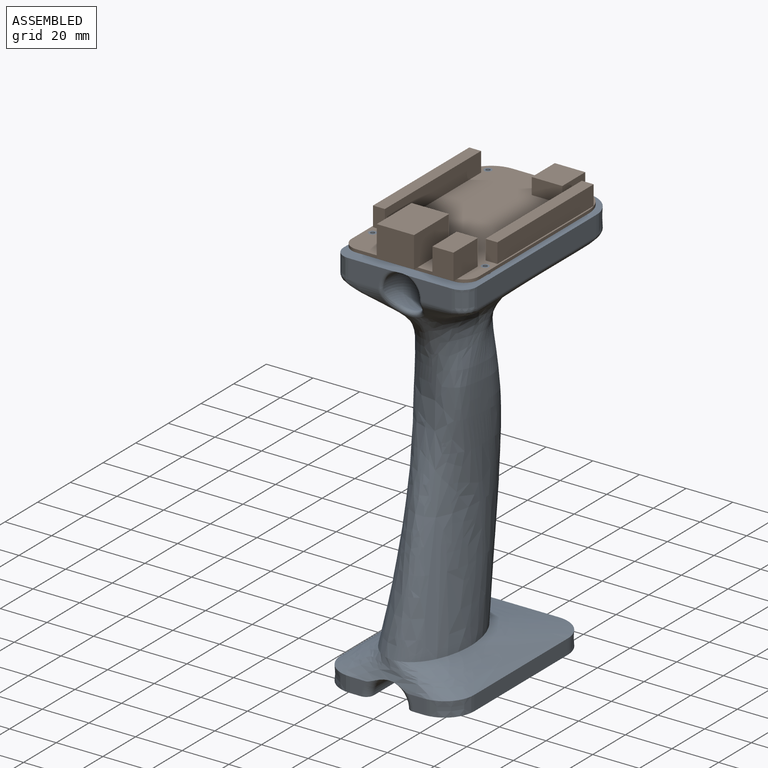
[diagram: assembled view]
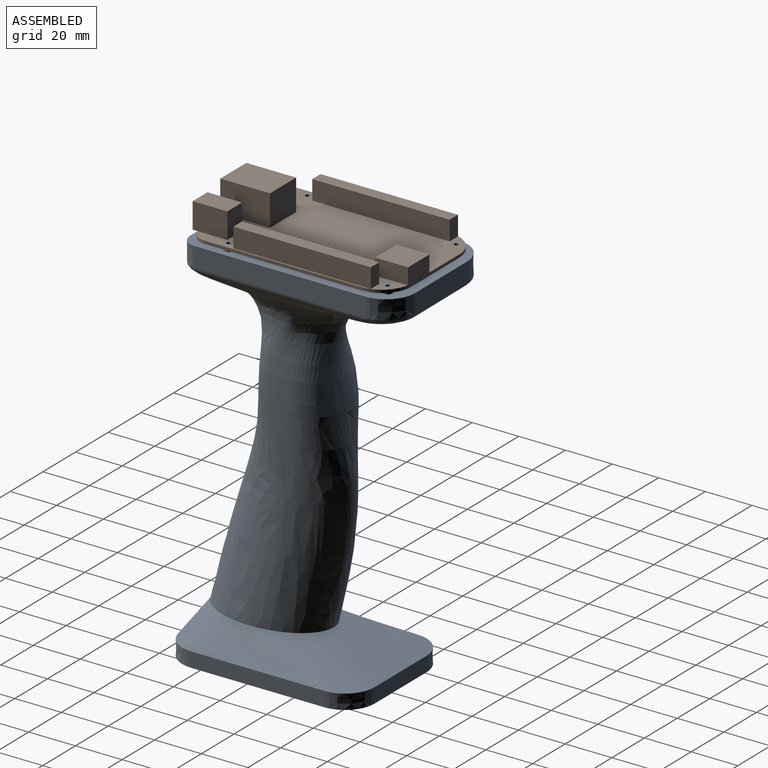
[diagram: assembled view, second angle]
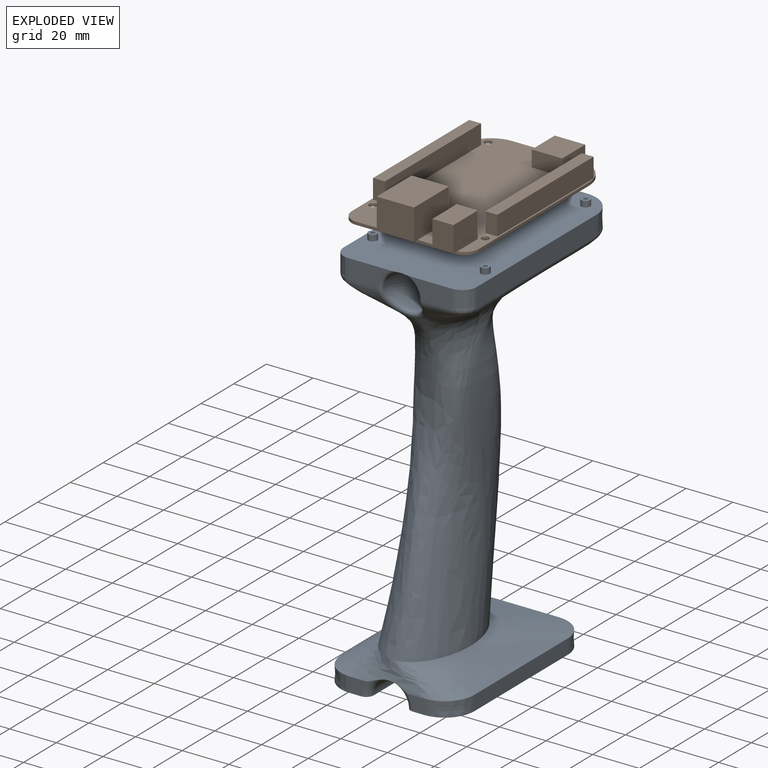
[diagram: exploded view]
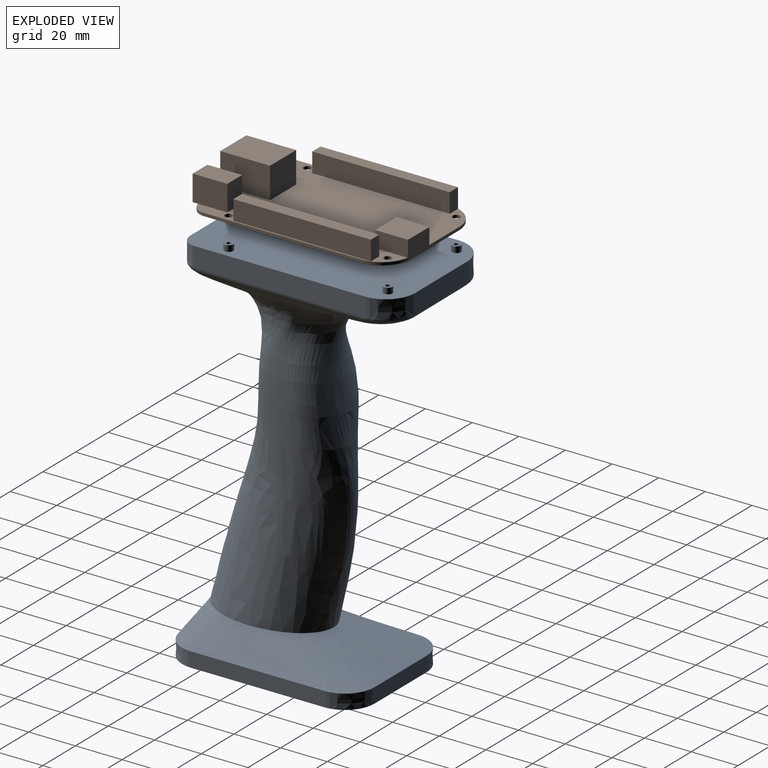
[diagram: exploded view, second angle]
ASSEMBLY  parts=2 mates=2
PART A: 56 faces, bbox 60.8x103.6x171 mm
  f0: plane 21.6x11.67mm, normal (0,-1,0), area 119.6mm2, adj f1,f9,f26,f55
  f1: extruded ~8.26x6.35mm, area 82.3mm2, adj f0,f2,f9,f55
  f2: plane 73.03x8.26mm, normal (-1,0,0), area 602.8mm2, adj f1,f3,f9,f55
  f3: extruded ~12.7x12.7mm, area 164.7mm2, adj f2,f4,f9,f55
  f4: plane 33.94x10.45mm, normal (0,1,0), area 262.1mm2, adj f3,f5,f9,f55
  f5: extruded ~12.7x12.7mm, area 164.7mm2, adj f4,f6,f9,f55
  f6: plane 73.03x8.26mm, normal (1,0,0), area 602.8mm2, adj f5,f7,f9,f55
  f7: extruded ~8.26x6.35mm, area 82.3mm2, adj f6,f8,f9,f55
  f8: plane 21.82x11.9mm, normal (0,-1,0), area 119.6mm2, adj f7,f9,f26,f55
  f9: plane 92.08x57.15mm, normal (0,0,1), area 5128.2mm2, adj f0,f1,f2,f3,f4,f5,f6,f7
  f10: cylinder r=1.91mm len=3.81mm, axis (0,0,-1), area 30.4mm2, adj f9,f11
  f11: plane 3.81x3.81mm, normal (0,0,1), area 8.9mm2, adj f10,f12
  f12: cylinder r=0.89mm len=7.62mm, axis (0,0,1), area 42.6mm2, adj f11,f13
  f13: plane 1.78x1.78mm, normal (0,0,1), area 2.5mm2, adj f12
  f14: cylinder r=1.91mm len=3.81mm, axis (0,0,-1), area 30.4mm2, adj f9,f15
  f15: plane 3.81x3.81mm, normal (0,0,1), area 8.9mm2, adj f14,f16
  f16: cylinder r=0.89mm len=7.62mm, axis (0,0,1), area 42.6mm2, adj f15,f17
  f17: plane 1.78x1.78mm, normal (0,0,1), area 2.5mm2, adj f16
  f18: cylinder r=1.91mm len=3.81mm, axis (0,0,-1), area 30.4mm2, adj f9,f19
  f19: plane 3.81x3.81mm, normal (0,0,1), area 8.9mm2, adj f18,f20
  f20: cylinder r=0.89mm len=7.62mm, axis (0,0,1), area 42.6mm2, adj f19,f21
  f21: plane 1.78x1.78mm, normal (0,0,1), area 2.5mm2, adj f20
  f22: cylinder r=1.91mm len=3.81mm, axis (0,0,-1), area 30.4mm2, adj f9,f23
  f23: plane 3.81x3.81mm, normal (0,0,1), area 8.9mm2, adj f22,f24
  f24: cylinder r=0.89mm len=7.62mm, axis (0,0,1), area 42.6mm2, adj f23,f25
  f25: plane 1.78x1.78mm, normal (0,0,1), area 2.5mm2, adj f24
  f26: bspline ~18.42x11.26mm, area 46.5mm2, adj f0,f8,f9,f27,f54
  f27: torus R=38.7mm, axis (1,0,0), area 1756.2mm2, adj f26,f28,f29,f30,f31,f32,f50,f51
  f28: plane 15.88x7.93mm, normal (0,0.04,-1), area 45.6mm2, adj f27,f29,f50,f53
  f29: plane 2.01x0.85mm, normal (0,0,-1), area 0.9mm2, adj f27,f28,f30
  f30: bspline ~39.38x18.49mm, area 0.1mm2, adj f27,f29,f31
  f31: plane 2.1x0.37mm, normal (0,0.04,-1), area 0mm2, adj f27,f30,f50
  f32: bspline ~135.2x31.2mm, area 6033.2mm2, adj f27,f33,f34,f35,f36,f49
  f33: plane 17.32x11.05mm, normal (0,0,1), area 52.6mm2, adj f32,f35
  f34: torus R=38.7mm, axis (1,0,0), area 523.4mm2, adj f32,f50
  f35: torus R=38.7mm, axis (1,0,0), area 85mm2, adj f32,f33
  f36: plane 84.8x59.4mm, normal (0,0,-1), area 4022.3mm2, adj f32,f37,f39,f40,f41,f42,f43,f44
  f37: plane 7.03x6.63mm, normal (0,-1,0), area 34.3mm2, adj f36,f38,f39,f47
  f38: bspline ~82.55x57.15mm, area 3880mm2, adj f37,f39,f40,f41,f42,f43,f44,f45
  f39: extruded ~12.7x12.7mm, area 126.7mm2, adj f36,f37,f38,f40
  f40: plane 59.9x9.1mm, normal (1,0,0), area 362.9mm2, adj f36,f38,f39,f41
  f41: extruded ~12.7x12.7mm, area 126.7mm2, adj f36,f38,f40,f42
  f42: plane 33.04x7.64mm, normal (0,1,0), area 201.6mm2, adj f36,f38,f41,f43
  f43: extruded ~12.7x12.7mm, area 126.7mm2, adj f36,f38,f42,f44
  f44: plane 59.9x9.1mm, normal (-1,0,0), area 362.9mm2, adj f36,f38,f43,f45
  f45: extruded ~12.7x12.7mm, area 126.7mm2, adj f36,f38,f44,f46
  f46: plane 7.1x6.7mm, normal (0,-1,0), area 34.3mm2, adj f36,f38,f45,f47
  f47: torus R=11.11mm, axis (0,1,0), area 104.1mm2, adj f36,f37,f38,f46,f48
  f48: cylinder r=7.94mm len=25.4mm, axis (0,-1,0), area 253.7mm2, adj f36,f47,f49
  f49: bspline ~23.62x22.49mm, area -125.3mm2, adj f32,f48
  f50: bspline ~15.84x10.63mm, area 178.2mm2, adj f27,f28,f31,f34,f51
  f51: plane 2.1x0.37mm, normal (0,0.04,-1), area 0mm2, adj f27,f50,f52
  f52: bspline ~39.38x18.49mm, area 0.1mm2, adj f27,f51,f53
  f53: plane 2.02x0.85mm, normal (0,0,-1), area 0.9mm2, adj f27,f28,f52
  f54: bspline ~18.42x13.01mm, area 85.3mm2, adj f26,f27,f55
  f55: bspline ~139.7x96.78mm, area 19056mm2, adj f0,f1,f2,f3,f4,f5,f6,f7
PART B: 41 faces, bbox 88.5x54.6x14.6 mm
  f0: plane 86.36x54.61mm, normal (0,0,1), area 3393.6mm2, adj f1,f2,f3,f4,f5,f6,f7,f8
  f1: plane 31.37x8.26mm, normal (1,0,0), area 128.5mm2, adj f0,f2,f8,f9,f36,f38,f39,f40
  f2: cylinder r=12.7mm len=12.7mm, axis (0,0,-1), area 25.3mm2, adj f0,f1,f3,f9
  f3: plane 67.31x1.27mm, normal (0,1,0), area 85.5mm2, adj f0,f2,f4,f9
  f4: cylinder r=6.35mm len=6.35mm, axis (0,0,-1), area 12.7mm2, adj f0,f3,f5,f9
  f5: plane 41.91x1.27mm, normal (-1,0,0), area 53.2mm2, adj f0,f4,f6,f9,f24,f35
  f6: cylinder r=6.35mm len=6.35mm, axis (0,0,-1), area 12.7mm2, adj f0,f5,f7,f9,f35
  f7: plane 67.31x1.27mm, normal (0,-1,0), area 85.5mm2, adj f0,f6,f8,f9
  f8: cylinder r=12.7mm len=12.7mm, axis (0,0,-1), area 25.3mm2, adj f0,f1,f7,f9,f40
  f9: plane 86.36x54.61mm, normal (0,0,-1), area 4597.9mm2, adj f1,f2,f3,f4,f5,f6,f7,f8
  f10: cylinder r=1.59mm len=3.18mm, axis (0,0,1), area 12.7mm2, adj f0,f9
  f11: cylinder r=1.59mm len=3.18mm, axis (0,0,1), area 12.7mm2, adj f0,f9
  f12: cylinder r=1.59mm len=3.18mm, axis (0,0,1), area 12.7mm2, adj f0,f9
  f13: cylinder r=1.59mm len=3.18mm, axis (0,0,1), area 12.7mm2, adj f0,f9
  f14: plane 58.93x8.38mm, normal (0,1,0), area 493.9mm2, adj f0,f15,f17,f18
  f15: plane 8.38x5.08mm, normal (-1,0,0), area 42.6mm2, adj f0,f14,f16,f18
  f16: plane 58.93x8.38mm, normal (0,-1,0), area 493.9mm2, adj f0,f15,f17,f18
  f17: plane 8.38x5.08mm, normal (1,0,0), area 42.6mm2, adj f0,f14,f16,f18
  f18: plane 58.93x5.08mm, normal (0,0,1), area 299.4mm2, adj f14,f15,f16,f17
  f19: plane 58.93x8.38mm, normal (0,1,0), area 493.9mm2, adj f0,f20,f22,f23
  f20: plane 8.38x5.08mm, normal (-1,0,0), area 42.6mm2, adj f0,f19,f21,f23
  f21: plane 58.93x8.38mm, normal (0,-1,0), area 493.9mm2, adj f0,f20,f22,f23
  f22: plane 8.38x5.08mm, normal (1,0,0), area 42.6mm2, adj f0,f19,f21,f23
  f23: plane 58.93x5.08mm, normal (0,0,1), area 299.4mm2, adj f19,f20,f21,f22
  f24: plane 16x2.16mm, normal (0,0,-1), area 34.5mm2, adj f5,f25,f26,f27
  f25: plane 21.34x13.34mm, normal (0,1,0), area 284.5mm2, adj f0,f24,f26,f28,f29
  f26: plane 16x13.34mm, normal (-1,0,0), area 213.4mm2, adj f24,f25,f27,f29
  f27: plane 21.34x13.34mm, normal (0,-1,0), area 284.5mm2, adj f0,f24,f26,f28,f29
  f28: plane 16x13.34mm, normal (1,0,0), area 213.4mm2, adj f0,f25,f27,f29
  f29: plane 21.34x16mm, normal (0,0,1), area 341.4mm2, adj f25,f26,f27,f28
  f30: plane 14.86x11.05mm, normal (0,-1,0), area 164.2mm2, adj f0,f31,f33,f34,f35
  f31: plane 11.05x9.02mm, normal (1,0,0), area 99.6mm2, adj f0,f30,f32,f34
  f32: plane 14.86x11.05mm, normal (0,1,0), area 164.2mm2, adj f0,f31,f33,f34,f35
  f33: plane 11.05x9.02mm, normal (-1,0,0), area 99.6mm2, adj f30,f32,f34,f35
  f34: plane 14.86x9.02mm, normal (0,0,1), area 134mm2, adj f30,f31,f32,f33
  f35: plane 9.02x2.29mm, normal (0,0,-1), area 19.5mm2, adj f5,f6,f30,f32,f33
  f36: plane 14.1x6.99mm, normal (0,1,0), area 98.5mm2, adj f0,f1,f37,f39
  f37: plane 13.08x6.99mm, normal (-1,0,0), area 91.4mm2, adj f0,f36,f38,f39
  f38: plane 14.1x6.99mm, normal (0,-1,0), area 98.5mm2, adj f0,f1,f37,f39,f40
  f39: plane 14.1x13.08mm, normal (0,0,1), area 184.4mm2, adj f1,f36,f37,f38
  f40: plane 2.16x0.19mm, normal (0,0,-1), area 0.1mm2, adj f1,f8,f38
PLACE A t=(0.66,15.93,-15.52)mm fixed
PLACE B rot(axis=(0,0,1),90deg) t=(0.66,41.64,133.71)mm
MATE cylindrical B.f13 <-> A.f14  axis (0,0,1) through (24.79,13.07,134.98)mm
MATE cylindrical B.f10 <-> A.f10  axis (0,0,1) through (-23.47,13.07,134.98)mm
